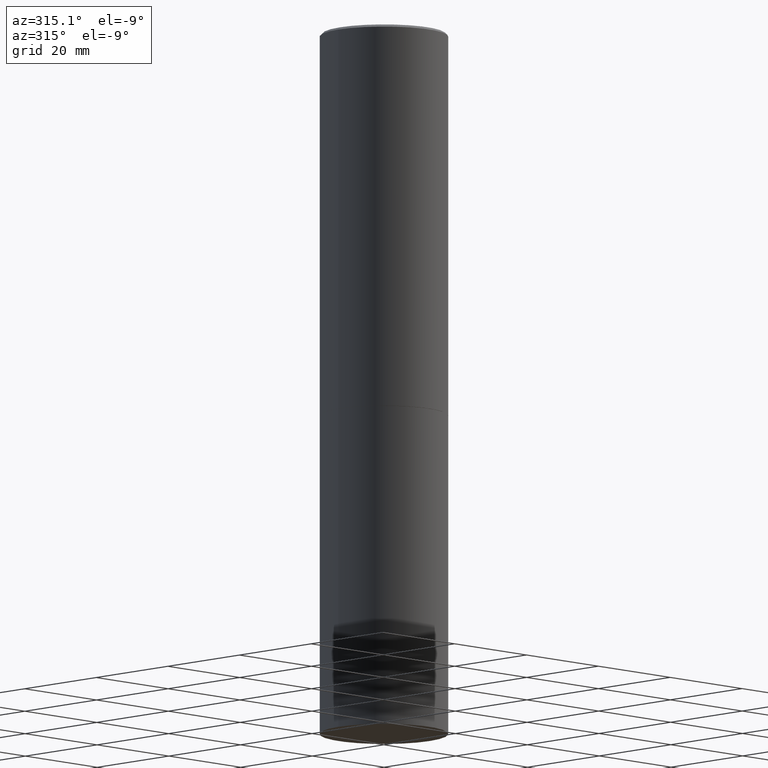
[diagram: clean part render]
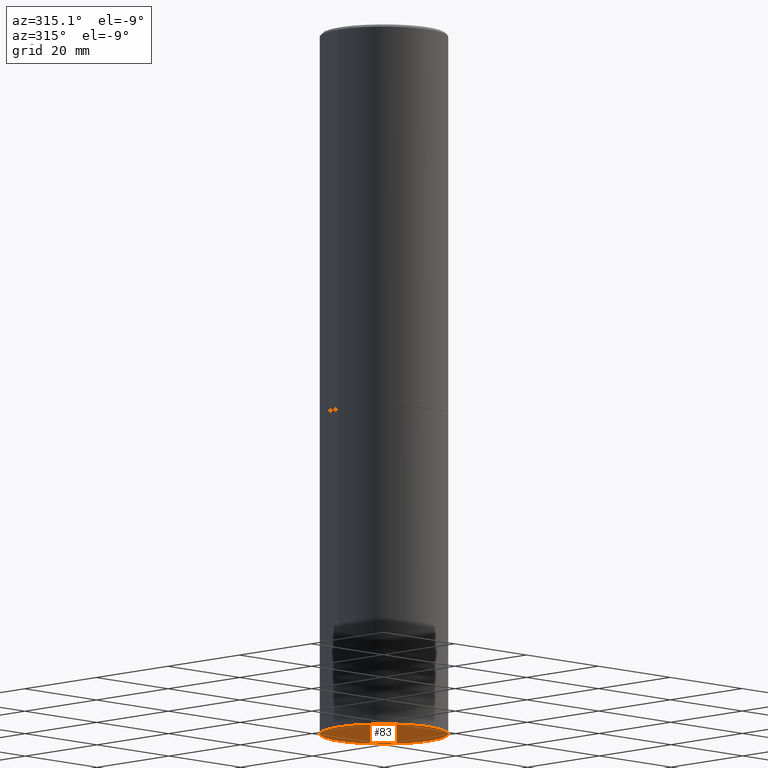
[diagram: same view with one face highlighted and labeled with its STEP entity id]
A machine part, auxiliary view. The second image highlights one B-rep face of the part: STEP entity #83.
In plain terms, the highlighted planar face has unit normal (0, -0, -1).
Its self-contained STEP definition (entity closure, byte-faithful):
#26 = VERTEX_POINT ( 'NONE', #60 ) ;
#60 = CARTESIAN_POINT ( 'NONE',  ( 0.5000000000000000000, -2.269462870248043307E-14, -5.500000000000000000 ) ) ;
#83 = ADVANCED_FACE ( 'NONE', ( #206 ), #286, .T. ) ;
#96 = AXIS2_PLACEMENT_3D ( 'NONE', #229, #143, #288 ) ;
#118 = DIRECTION ( 'NONE',  ( -2.445468806185136597E-29, 3.491481338843145583E-15, 1.000000000000000000 ) ) ;
#143 = DIRECTION ( 'NONE',  ( 2.438088387897960049E-29, -3.491481338843145188E-15, -1.000000000000000000 ) ) ;
#147 = DIRECTION ( 'NONE',  ( 1.000000000000000000, -6.982962677686262766E-15, 0.000000000000000000 ) ) ;
#151 = EDGE_CURVE ( 'NONE', #26, #196, #209, .T. ) ;
#152 = DIRECTION ( 'NONE',  ( 1.000000000000000000, -6.982962677686262766E-15, 0.000000000000000000 ) ) ;
#179 = AXIS2_PLACEMENT_3D ( 'NONE', #181, #265, #152 ) ;
#181 = CARTESIAN_POINT ( 'NONE',  ( 1.345007843401824904E-28, -1.920314736363729972E-14, -5.500000000000000000 ) ) ;
#196 = VERTEX_POINT ( 'NONE', #319 ) ;
#201 = ORIENTED_EDGE ( 'NONE', *, *, #285, .F. ) ;
#206 = FACE_OUTER_BOUND ( 'NONE', #366, .T. ) ;
#209 = CIRCLE ( 'NONE', #363, 0.5000000000000000000 ) ;
#212 = ORIENTED_EDGE ( 'NONE', *, *, #151, .F. ) ;
#229 = CARTESIAN_POINT ( 'NONE',  ( 3.491481338843267462E-15, 0.4999999999999807931, -5.500000000000001776 ) ) ;
#265 = DIRECTION ( 'NONE',  ( -2.445468806185136597E-29, 3.491481338843145583E-15, 1.000000000000000000 ) ) ;
#285 = EDGE_CURVE ( 'NONE', #196, #26, #330, .T. ) ;
#286 = PLANE ( 'NONE',  #96 ) ;
#288 = DIRECTION ( 'NONE',  ( -1.000000000000000000, 6.982962677686265922E-15, -4.876176775795935793E-29 ) ) ;
#289 = CARTESIAN_POINT ( 'NONE',  ( 1.345007843401824904E-28, -1.920314736363729972E-14, -5.500000000000000000 ) ) ;
#319 = CARTESIAN_POINT ( 'NONE',  ( -0.5000000000000000000, -1.128608201128286632E-14, -5.500000000000000000 ) ) ;
#330 = CIRCLE ( 'NONE', #179, 0.5000000000000000000 ) ;
#363 = AXIS2_PLACEMENT_3D ( 'NONE', #289, #118, #147 ) ;
#366 = EDGE_LOOP ( 'NONE', ( #212, #201 ) ) ;